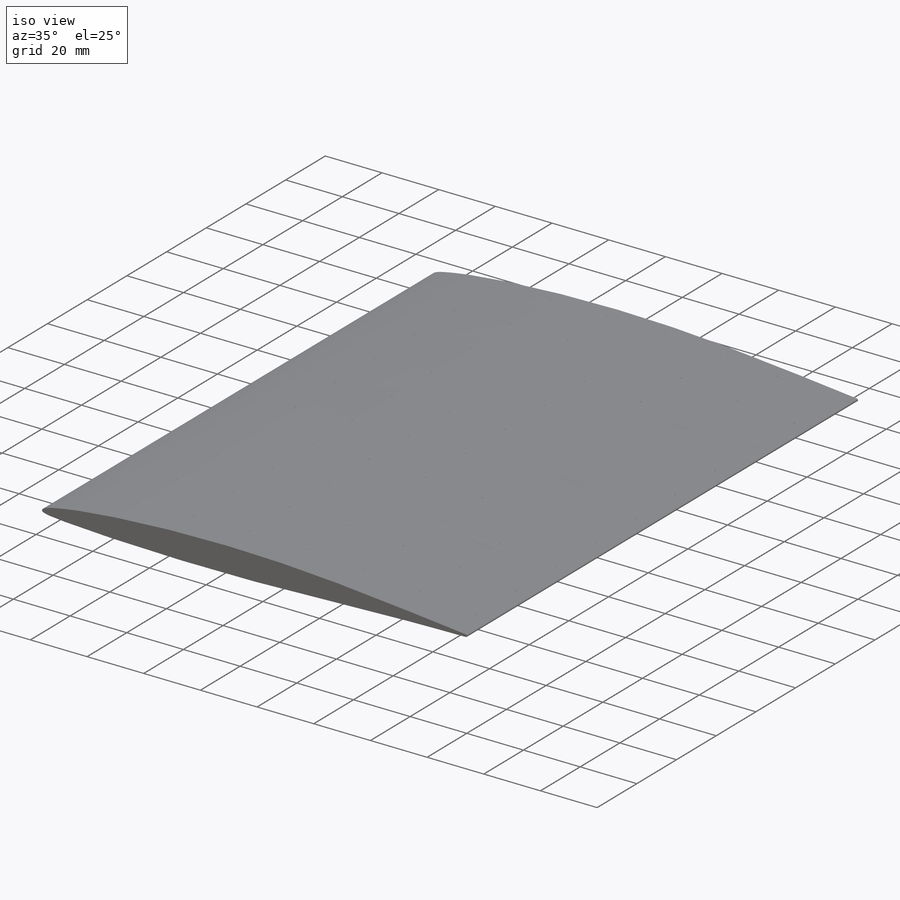
[diagram: iso view]
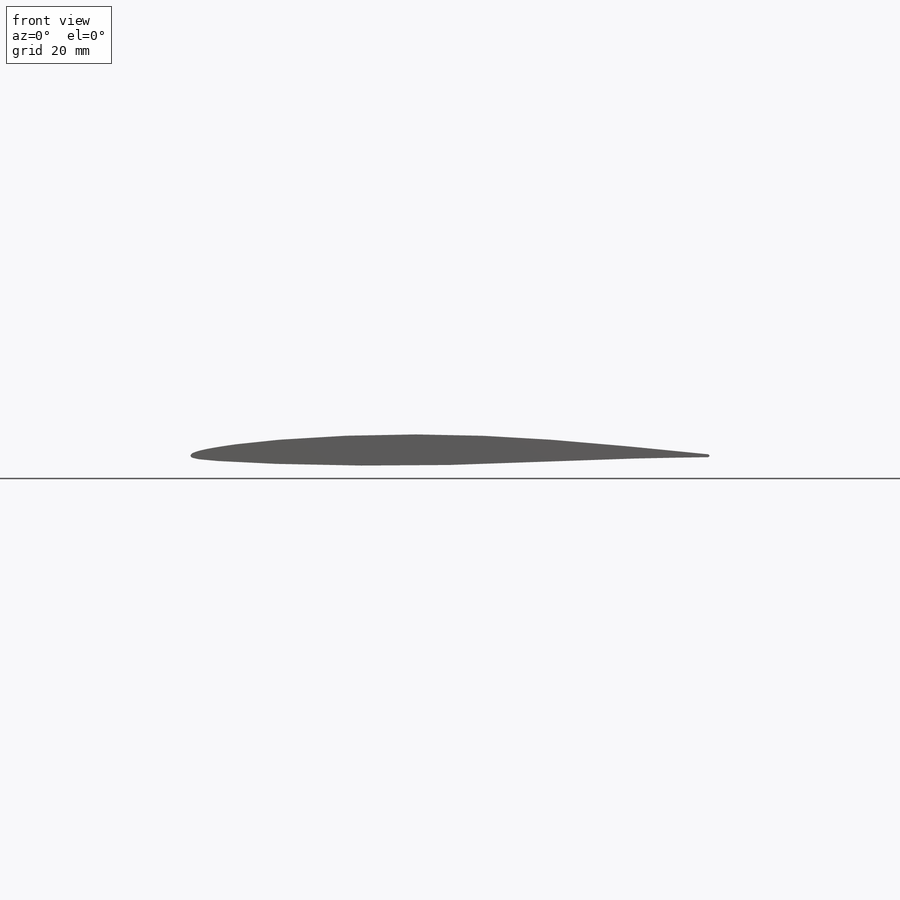
[diagram: front view]
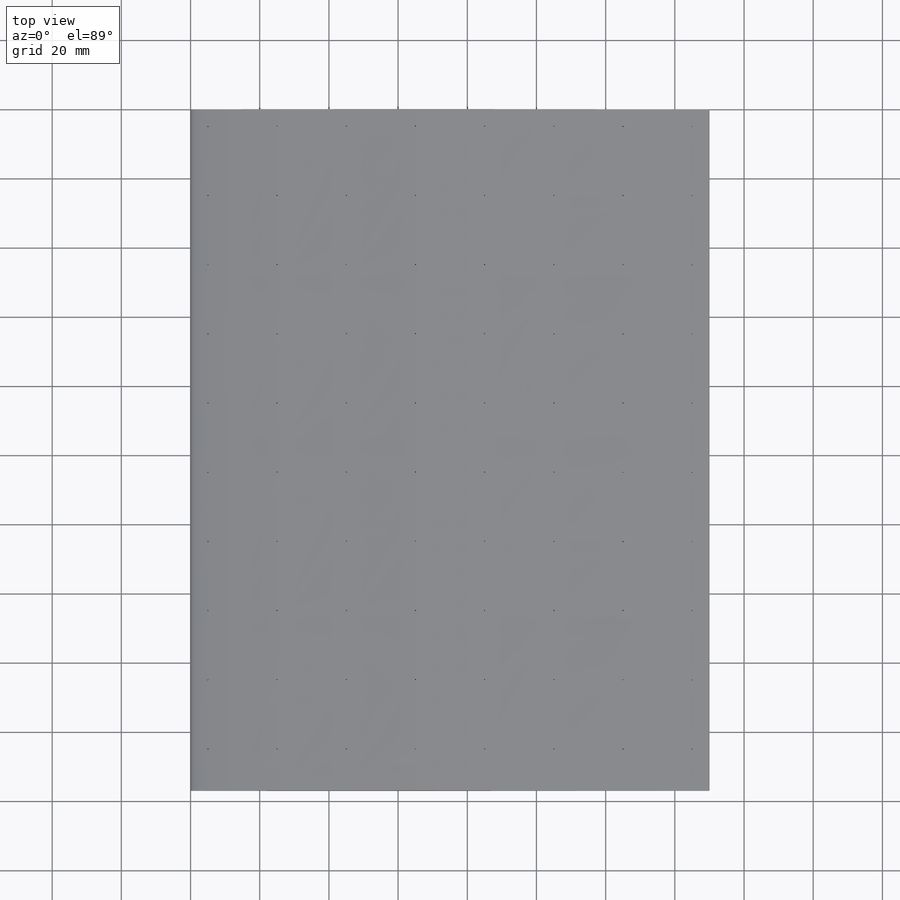
[diagram: top view]
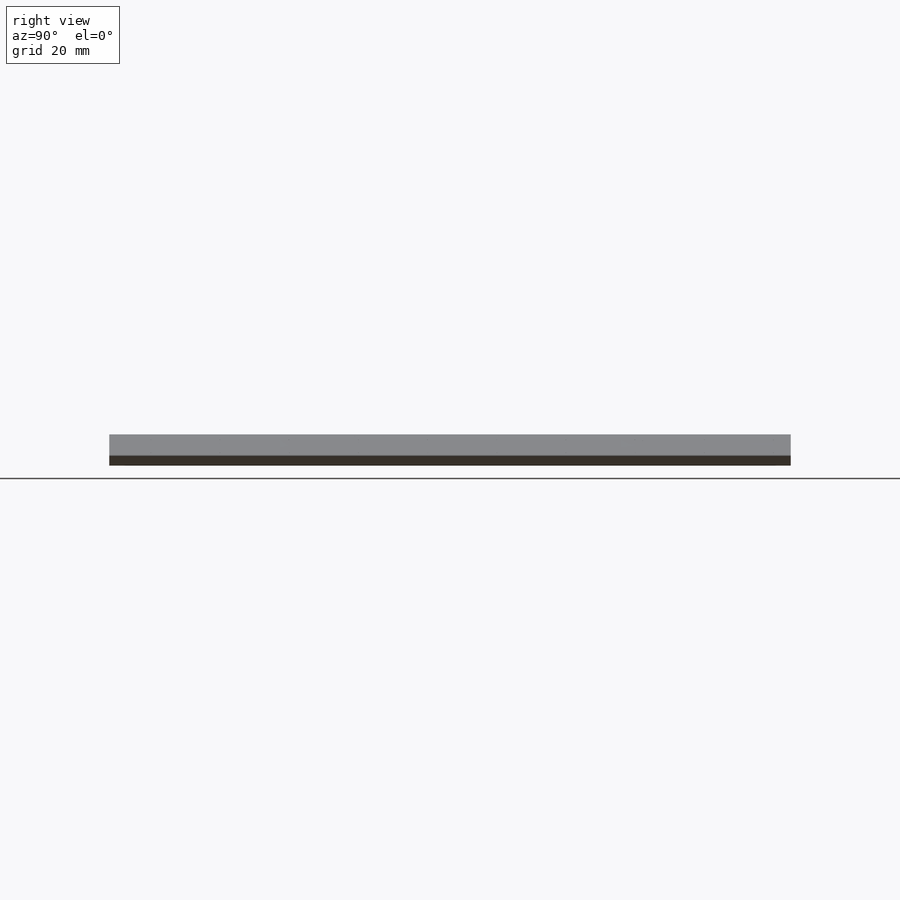
[diagram: right view]
SOLIDWORKS PART (.sldprt)
format: sldprt  version: not decoded by parser v0  size: 587,264 bytes
history: native  units: mm
features: plane x4, sketch x3, material x1, extrude x1, hole x1, pattern_linear x1 + 1 further entry (+10 scaffold rows collapsed)
feature tree (22):
  scaffold x10  (default folders/planes/origin — collapsed)
  material  "Material <nicht angegeben>"
  plane  "Ebene vorne"
  plane  "Ebene oben"
  plane  "Ebene rechts"
  "Achse2"
  plane  "Ebene1"  Offset=10mm
  sketch  "Skizze1"
  extrude  "Aufsatz-Linear austragen1"  Depth=197mm
  hole  "Ø0.3 (0.3) Durchmesser Bohrung2"  Diameter=0.3mm Depth=10.495758mm
  sketch  "Skizze4"  dims[D1=5.0mm D2=5.0mm]
  sketch  "Skizze3"  dims[hole-wizard template sketch: 59 standard entries collapsed; hole parameters kept: c18.Bohrerdurchmesser=0.3mm c18.Bohrungstiefe=~10.495758mm]
  pattern_linear  "Lineares Muster4"  Count1=8 Count2=10 Spacing1=20mm Spacing2=20mm
decode coverage: 5 of 6 modeling features carry decoded parameters; 1 rows unclassified (native names shown)
note: ~ marks probable driven/reference dimensions
note: suppression state not decoded; provenance and decode notes live in map.json
